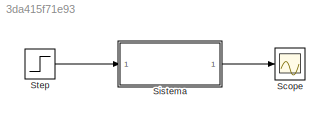
MODEL slx_3da415f71e93
KIND model
CONFIG AbsTol = auto
CONFIG EnableMultiTasking = on
CONFIG FixedStep = auto
CONFIG MaxStep = auto
CONFIG MinStep = auto
CONFIG RelTol = 1e-3
CONFIG SampleTimeConstraint = Unconstrained
CONFIG SolverName = ode45
CONFIG StartTime = 0.0
CONFIG StopTime = 1
BLOCK [Scope] Scope
  Floating = off
  NumInputPorts = 1
  ScopeSpecificationString = Simulink.scopes.TimeScopeBlockCfg('CurrentConfiguration', extmgr.ConfigurationSet(extmgr.Configuration('Core','General UI',true),extmgr.Configuration('Core','Source UI',true),extmgr.Configuration('Sources','WiredSimulink',true,'DataLoggingLimitDataPoints',true,'DataLoggingSaveFormat','Array','DataLoggingDecimation','1','DataLoggingDecimateData',true),extmgr.Configuration('Visuals','Time Domain',tr...<+1686ch>
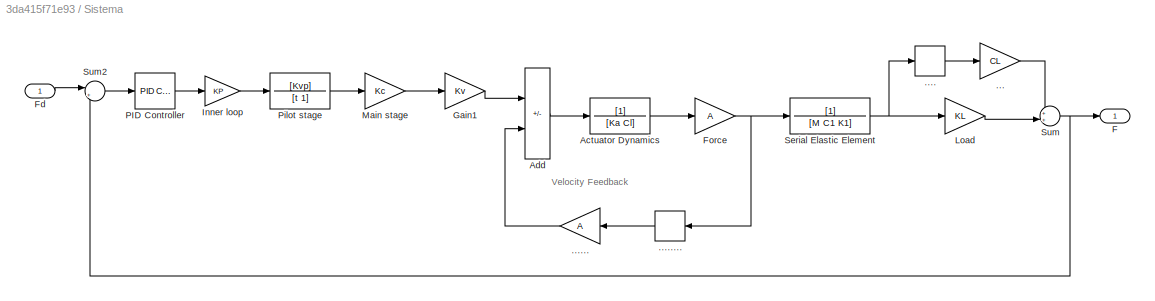
BLOCK [SubSystem] Sistema 
BLOCK [Gain] Sistema /...
  Gain = CL
BLOCK [Derivative] Sistema /....
BLOCK [Gain] Sistema /......
  Gain = A
BLOCK [Derivative] Sistema /........
BLOCK [TransferFcn] Sistema /Actuator Dynamics
  Denominator = [Ka Cl]
BLOCK [Sum] Sistema /Add
  IconShape = rectangular
  Inputs = +-
BLOCK [Outport] Sistema /F
BLOCK [Inport] Sistema /Fd
BLOCK [Gain] Sistema /Force
  Gain = A
BLOCK [Gain] Sistema /Gain1
  Gain = Kv
BLOCK [Gain] Sistema /Inner loop
  Gain = KP
BLOCK [Gain] Sistema /Load
  Gain = KL
BLOCK [Gain] Sistema /Main stage
  Gain = Kc
BLOCK [Reference] Sistema /PID Controller  REF=slpidlib/PID Controller
  SourceBlock = slpidlib/PID Controller
  SourceType = PID 1dof
BLOCK [TransferFcn] Sistema /Pilot stage
  Denominator = [t 1]
  Numerator = [Kvp]
BLOCK [TransferFcn] Sistema /Serial Elastic Element
  Denominator = [M C1 K1]
BLOCK [Sum] Sistema /Sum
  Inputs = ++|
BLOCK [Sum] Sistema /Sum2
  Inputs = |+-
BLOCK [Step] Step
  SampleTime = 0
  Time = 0
ANNOTATION Sistema : Velocity Feedback
LINE Sistema /........:1 -> Sistema /......:1
LINE Sistema /......:1 -> Sistema /Add:2
LINE Sistema /....:1 -> Sistema /...:1
LINE Sistema /...:1 -> Sistema /Sum:1
LINE Sistema /Actuator Dynamics:1 -> Sistema /Force:1
LINE Sistema /Add:1 -> Sistema /Actuator Dynamics:1
LINE Sistema /Fd:1 -> Sistema /Sum2:1
NET Sistema /Force:1 -> Sistema /........:1, Sistema /Serial Elastic Element:1
LINE Sistema /Gain1:1 -> Sistema /Add:1
LINE Sistema /Inner loop:1 -> Sistema /Pilot stage:1
LINE Sistema /Load:1 -> Sistema /Sum:2
LINE Sistema /Main stage:1 -> Sistema /Gain1:1
LINE Sistema /PID Controller:1 -> Sistema /Inner loop:1
LINE Sistema /Pilot stage:1 -> Sistema /Main stage:1
NET Sistema /Serial Elastic Element:1 -> Sistema /....:1, Sistema /Load:1
LINE Sistema /Sum2:1 -> Sistema /PID Controller:1
NET Sistema /Sum:1 -> Sistema /F:1, Sistema /Sum2:2
LINE Sistema :1 -> Scope:1
LINE Step:1 -> Sistema :1
note: NET lines group one-source signal fan-out (src -> all destinations, sorted); 1:1 wires keep LINE
